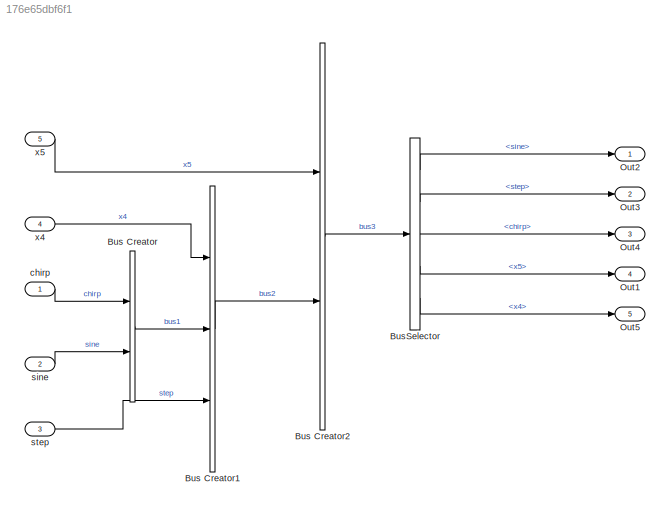
MODEL slx_176e65dbf6f1
KIND model
CONFIG AbsTol = auto
CONFIG EnableMultiTasking = off
CONFIG FixedStep = 0.200000
CONFIG MaxStep = auto
CONFIG MinStep = auto
CONFIG PreLoadFcn = % Bus object: subBus \nclear elems;\nelems(1) = Simulink.BusElement;\nelems(1).Name = 'chirp';\nelems(1).Dimensions = 2;\nelems(1).DimensionsMode = 'Fixed';\nelems(1).DataType = 'double';\nelems(1).SampleTime = -1;\nelems(1).Complexity = 'real';\nelems(1).Min = [];\nelems(1).Max = [];\nelems(1).DocUnits = '';\nelems(1).Description = '';\n\nelems(2) = Simulink.BusElement;\nelems(2).Name = 'sine';\nelems(2).Dimensi...<+1240ch>
CONFIG RelTol = 1e-3
CONFIG SampleTimeConstraint = Unconstrained
CONFIG Solver = FixedStepDiscrete
CONFIG SolverName = FixedStepDiscrete
CONFIG StartTime = 0.0
CONFIG StopTime = 10.0
BLOCK [BusCreator] Bus Creator
  AttributesFormatString = SubBus
  DisplayOption = bar
  InheritFromInputs = on
  Inputs = 2
  Ports = [2, 1]
BLOCK [BusCreator] Bus Creator1
  AttributesFormatString = NestedBus
  DisplayOption = bar
  InheritFromInputs = on
  Inputs = 3
  Ports = [3, 1]
BLOCK [BusCreator] Bus Creator2
  AttributesFormatString = NestedBus
  DisplayOption = bar
  InheritFromInputs = on
  Inputs = 2
  Ports = [2, 1]
BLOCK [BusSelector] BusSelector
  AttributesFormatString = Bus Selector
  OutputAsBus = off
  OutputSignals = bus2.bus1.sine,bus2.step,bus2.bus1.chirp,x5,bus2.x4
  Ports = [1, 5]
BLOCK [Outport] Out1
  IconDisplay = Port number
  Port = 4
BLOCK [Outport] Out2
  IconDisplay = Port number
BLOCK [Outport] Out3
  IconDisplay = Port number
  Port = 2
BLOCK [Outport] Out4
  IconDisplay = Port number
  Port = 3
BLOCK [Outport] Out5
  IconDisplay = Port number
  Port = 5
BLOCK [Inport] chirp
  IconDisplay = Port number
  OutDataTypeStr = double
BLOCK [Inport] sine
  IconDisplay = Port number
  OutDataTypeStr = int32
  Port = 2
  PortDimensions = 3
BLOCK [Inport] step
  IconDisplay = Port number
  OutDataTypeStr = boolean
  Port = 3
  PortDimensions = 4
BLOCK [Inport] x4
  IconDisplay = Port number
  OutDataTypeStr = boolean
  Port = 4
  PortDimensions = 5
BLOCK [Inport] x5
  IconDisplay = Port number
  OutDataTypeStr = boolean
  Port = 5
  PortDimensions = 5
LINE Bus Creator1:1 -> Bus Creator2:2
LINE Bus Creator2:1 -> BusSelector:1
LINE Bus Creator:1 -> Bus Creator1:2
LINE BusSelector:1 -> Out2:1
LINE BusSelector:2 -> Out3:1
LINE BusSelector:3 -> Out4:1
LINE BusSelector:4 -> Out1:1
LINE BusSelector:5 -> Out5:1
LINE chirp:1 -> Bus Creator:1
LINE sine:1 -> Bus Creator:2
LINE step:1 -> Bus Creator1:3
LINE x4:1 -> Bus Creator1:1
LINE x5:1 -> Bus Creator2:1
